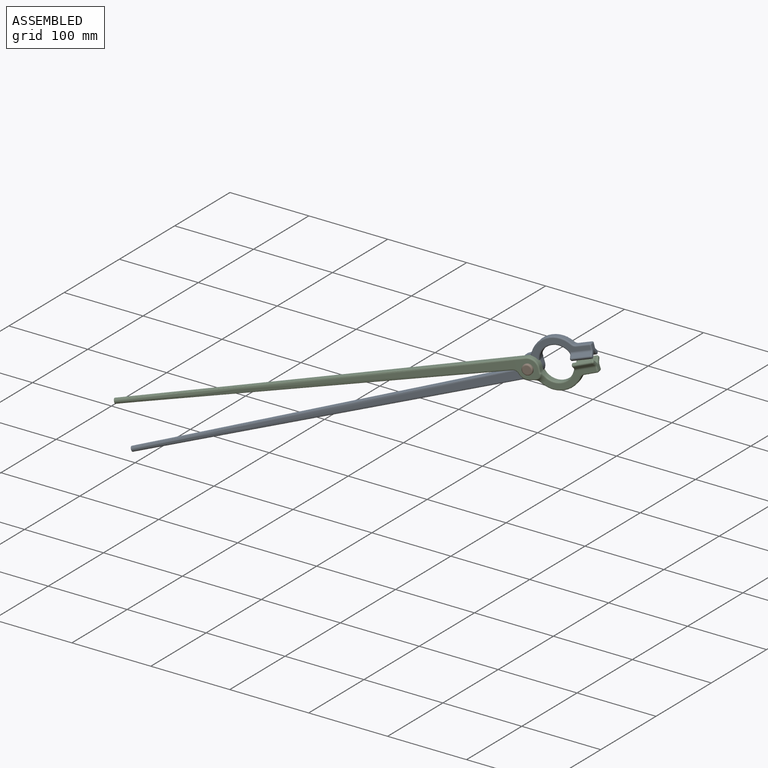
[diagram: assembled view]
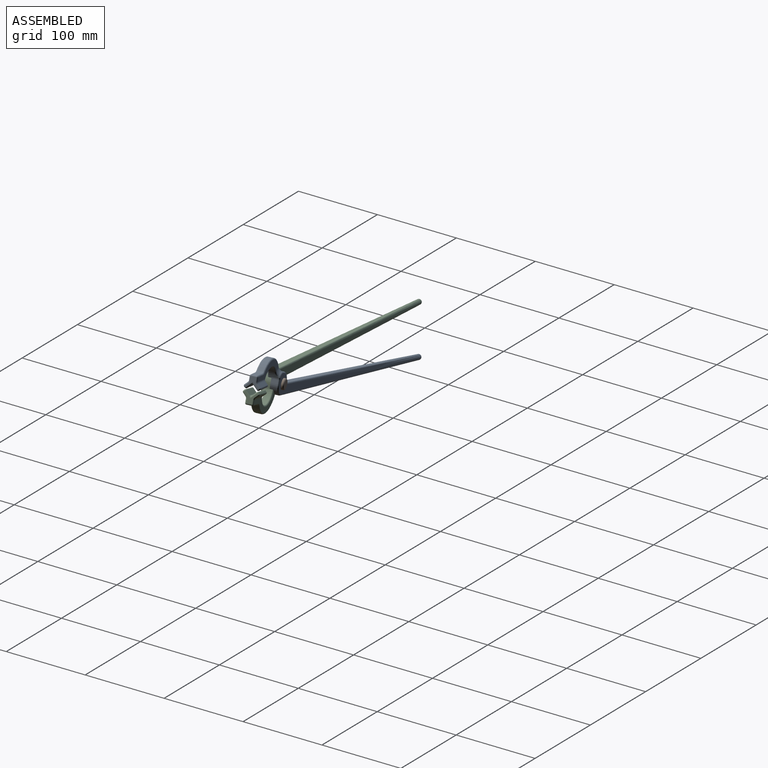
[diagram: assembled view, second angle]
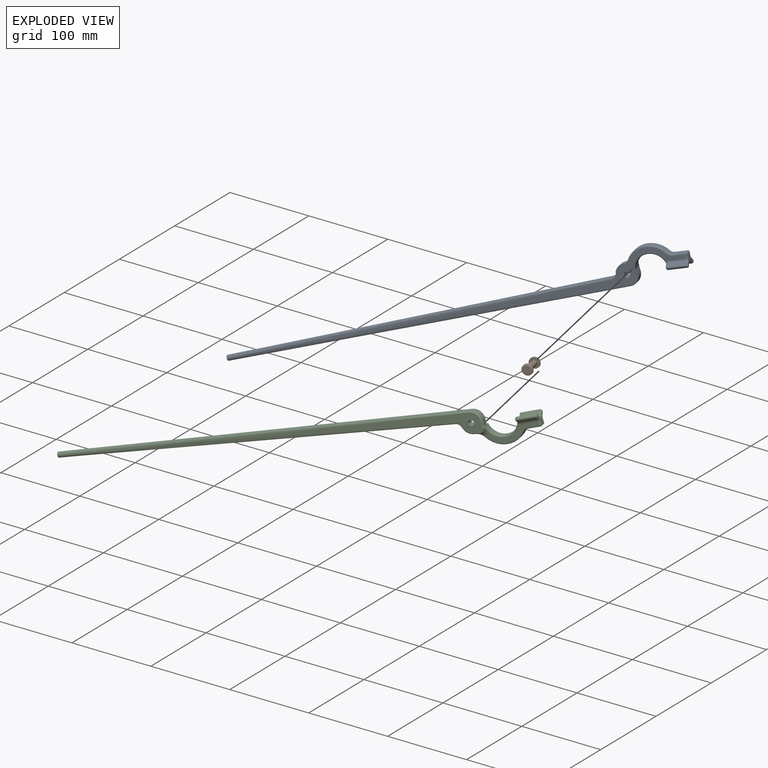
[diagram: exploded view]
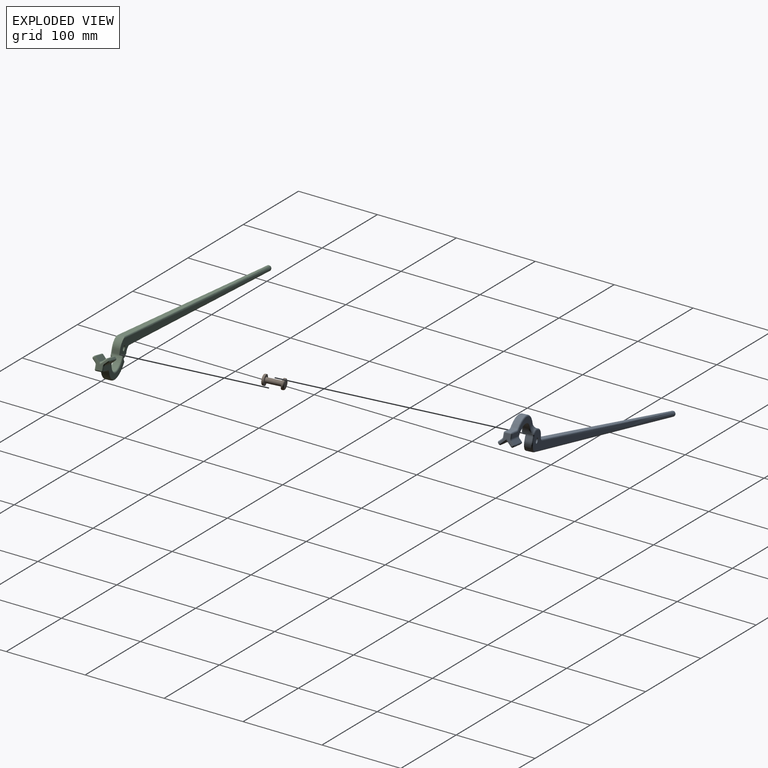
[diagram: exploded view, second angle]
ASSEMBLY  parts=3 mates=4
PART A: 108 faces, bbox 545.5x20.8x44.9 mm
  f0: plane 5.34x4.33mm, normal (-1,0,0.07), area 8.1mm2, adj f9,f70,f86,f88,f90
  f1: plane 26.97x25.98mm, normal (0,-1,0), area 494mm2, adj f2,f4,f6,f7,f8,f9,f24,f25
  f2: plane 7.94x1.7mm, normal (0,0,1), area 13.5mm2, adj f1,f25,f34,f51
  f3: plane 12.92x6.99mm, normal (0,0,-1), area 84.2mm2, adj f6,f30,f41,f43,f45
  f4: plane 7.94x4.37mm, normal (1,0,0), area 34.7mm2, adj f1,f6,f26,f46
  f5: plane 24.25x22.69mm, normal (0,1,0), area 429.3mm2, adj f24,f33,f44,f45,f46,f47,f48,f49
  f6: cylinder r=12.7mm len=12.7mm, axis (0,1,0), area 154.7mm2, adj f1,f3,f4,f41,f47
  f7: cylinder r=28.57mm len=48.84mm, axis (0,1,0), area 365.5mm2, adj f1,f8,f21,f25,f54,f55,f66
  f8: cylinder r=13.79mm len=7.32mm, axis (0,1,0), area 47.5mm2, adj f1,f7,f9,f10,f66,f69
  f9: cylinder r=19.05mm len=36.72mm, axis (0,1,0), area 325.1mm2, adj f0,f1,f8,f15,f26,f59,f61,f63
  f10: plane 66.95x20.27mm, normal (0,-1,0), area 441.9mm2, adj f8,f22,f66,f67,f68,f69,f82
  f11: plane 62.88x20.27mm, normal (0,1,0), area 392.9mm2, adj f23,f27,f52,f53,f54,f61,f77
  f12: plane 22.48x6.03mm, normal (-0.05,0.71,-0.71), area 141.1mm2, adj f74,f84,f90,f92,f100
  f13: plane 22.48x6.03mm, normal (-0.05,-0.71,-0.71), area 141.1mm2, adj f72,f84,f91,f93,f103
  f14: plane 14.93x6.35mm, normal (0.07,0,1), area 95mm2, adj f21,f52,f68,f81
  f15: plane 5.34x4.33mm, normal (-1,0,0.07), area 8.1mm2, adj f9,f59,f87,f89,f91
  f16: plane 22.4x4.83mm, normal (0.05,-0.71,0.71), area 103.3mm2, adj f22,f78,f86,f97
  f17: plane 22.25x2.67mm, normal (-0.05,-0.71,-0.71), area 35.3mm2, adj f76,f88,f97,f100
  f18: plane 22.25x2.67mm, normal (-0.05,0.71,-0.71), area 35.3mm2, adj f71,f89,f103,f106
  f19: plane 22.4x4.83mm, normal (0.05,0.71,0.71), area 103.3mm2, adj f23,f73,f87,f106
  f20: plane 15.72x12.4mm, normal (1,0,-0.07), area 65.7mm2, adj f71,f72,f73,f74,f75,f76,f77,f78
  f21: cylinder r=6.35mm len=6.35mm, axis (0,1,0), area 35.5mm2, adj f7,f14,f53,f67
  f22: cylinder r=3.17mm len=23.75mm, axis (1,0,-0.07), area 57mm2, adj f10,f16,f70,f80,f86
  f23: cylinder r=3.17mm len=23.75mm, axis (1,0,-0.07), area 57mm2, adj f11,f19,f59,f75,f87
  f24: cylinder r=3.17mm len=9.53mm, axis (0,-1,0), area 190mm2, adj f1,f5
  f25: cylinder r=6.35mm len=7.94mm, axis (0,1,0), area 42.1mm2, adj f1,f2,f7,f50,f56,f57
  f26: cylinder r=6.35mm len=7.94mm, axis (0,1,0), area 17.7mm2, adj f1,f4,f9,f44,f65
  f27: torus R=12.5mm, axis (0,-1,0), area 56.6mm2, adj f11,f28,f55,f56,f62,f63,f65
  f28: cylinder r=6.35mm len=1.98mm, axis (1,0,0), area 1.6mm2, adj f27,f57,f60
  f29: plane 6.35x6.35mm, normal (-1,0,0), area 31.7mm2, adj f30,f31,f32,f33
  f30: bspline ~457.2x9.53mm, area 2675mm2, adj f3,f29,f40,f42
  f31: bspline ~457.2x15.56mm, area 3425mm2, adj f1,f29,f36,f37,f40
  f32: bspline ~457.2x9.53mm, area 2635mm2, adj f29,f35,f36,f38
  f33: bspline ~457.2x15.56mm, area 3067.5mm2, adj f5,f29,f38,f39,f42,f48
  f34: cylinder r=12.7mm len=11.99mm, axis (0,1,0), area 121.7mm2, adj f1,f2,f35,f37,f49
  f35: bspline ~9.07x5.93mm, area 49.3mm2, adj f32,f34,f37,f39,f48
  f36: bspline ~474.91x5.91mm, area 475.9mm2, adj f31,f32,f37
  f37: bspline ~10.68x9.62mm, area 24.7mm2, adj f1,f31,f34,f35,f36
  f38: bspline ~474.91x5.91mm, area 475.9mm2, adj f32,f33,f39
  f39: bspline ~7.96x4.04mm, area 12.4mm2, adj f33,f35,f38,f48
  f40: bspline ~460.62x2.62mm, area 483.4mm2, adj f30,f31,f41
  f41: bspline ~44.11x1.81mm, area 35.2mm2, adj f1,f3,f6,f40
  f42: bspline ~460.62x2.62mm, area 483.4mm2, adj f30,f33,f43
  f43: bspline ~14.77x1.66mm, area 0mm2, adj f3,f42,f45
  f44: torus R=7.94mm, axis (0,-1,0), area 5.7mm2, adj f5,f26,f46,f64
  f45: cylinder r=1.59mm len=12.7mm, axis (-1,0,0), area 31.7mm2, adj f3,f5,f43,f47
  f46: cylinder r=1.59mm len=4.37mm, axis (0,0,1), area 10.9mm2, adj f4,f5,f44,f47
  f47: torus R=11.11mm, axis (0,-1,0), area 47.5mm2, adj f5,f6,f45,f46
  f48: bspline ~6.02x4.53mm, area 8.7mm2, adj f5,f33,f35,f39,f49
  f49: torus R=11.11mm, axis (0,-1,0), area 37.3mm2, adj f5,f34,f48,f51
  f50: torus R=7.94mm, axis (0,-1,0), area 5.9mm2, adj f5,f25,f51,f58
  f51: cylinder r=1.59mm len=1.7mm, axis (-1,0,0), area 4.2mm2, adj f2,f5,f49,f50
  f52: cylinder r=1.59mm len=15.04mm, axis (1,0,-0.07), area 37.3mm2, adj f11,f14,f53,f79
  f53: torus R=7.94mm, axis (0,-1,0), area 15.2mm2, adj f11,f21,f52,f54
  f54: torus R=26.99mm, axis (0,-1,0), area 125mm2, adj f7,f11,f53,f55
  f55: bspline ~5.48x5.22mm, area 9.4mm2, adj f7,f27,f54,f56
  f56: bspline ~4.01x3.85mm, area 5.6mm2, adj f25,f27,f55,f57
  f57: bspline ~3.33x3.11mm, area 2.8mm2, adj f25,f28,f56,f58
  f58: sphere r=1.59mm, area 0.7mm2, adj f50,f57,f60
  f59: bspline ~4.78x3.15mm, area 8mm2, adj f9,f15,f23,f61,f87
  f60: cylinder r=1.59mm len=1.98mm, axis (1,0,0), area 3.6mm2, adj f5,f28,f58,f62
  f61: torus R=20.64mm, axis (0,-1,0), area 96mm2, adj f9,f11,f59,f63
  f62: torus R=5.22mm, axis (0,1,0), area 16.2mm2, adj f5,f27,f60,f64
  f63: bspline ~8.93x5.53mm, area 17.1mm2, adj f9,f27,f61,f65
  f64: sphere r=1.59mm, area 0.9mm2, adj f44,f62,f65
  f65: bspline ~1.52x1.41mm, area 0.2mm2, adj f26,f27,f63,f64
  f66: torus R=26.99mm, axis (0,-1,0), area 143.8mm2, adj f7,f8,f10,f67
  f67: torus R=7.94mm, axis (0,-1,0), area 15.2mm2, adj f10,f21,f66,f68
  f68: cylinder r=1.59mm len=15.04mm, axis (-1,0,0.07), area 37.3mm2, adj f10,f14,f67,f83
  f69: torus R=20.64mm, axis (0,-1,0), area 117.4mm2, adj f8,f9,f10,f70
  f70: bspline ~4.78x3.15mm, area 8mm2, adj f0,f9,f22,f69,f86
  f71: cylinder r=1.59mm len=2.25mm, axis (-0.05,-0.71,-0.71), area 4mm2, adj f18,f20,f104,f107
  f72: cylinder r=1.59mm len=7.86mm, axis (0.05,-0.71,0.71), area 19.8mm2, adj f13,f20,f85,f104
  f73: cylinder r=1.59mm len=4.51mm, axis (-0.05,0.71,-0.71), area 11.6mm2, adj f19,f20,f75,f107
  f74: cylinder r=1.59mm len=7.86mm, axis (-0.05,-0.71,-0.71), area 19.8mm2, adj f12,f20,f85,f101
  f75: torus R=4.76mm, axis (1,0,-0.07), area 7.3mm2, adj f20,f23,f73,f77
  f76: cylinder r=1.59mm len=2.25mm, axis (0.05,-0.71,0.71), area 4mm2, adj f17,f20,f98,f101
  f77: cylinder r=1.59mm len=4.75mm, axis (0.07,0,1), area 11.6mm2, adj f11,f20,f75,f79
  f78: cylinder r=1.59mm len=4.51mm, axis (0.05,0.71,0.71), area 11.6mm2, adj f16,f20,f80,f98
  f79: sphere r=1.59mm, area 5.4mm2, adj f52,f77,f81
  f80: torus R=4.76mm, axis (1,0,-0.07), area 7.3mm2, adj f20,f22,f78,f82
  f81: cylinder r=1.59mm len=6.35mm, axis (0,1,0), area 15.8mm2, adj f14,f20,f79,f83
  f82: cylinder r=1.59mm len=4.75mm, axis (0.07,0,1), area 11.6mm2, adj f10,f20,f80,f83
  f83: sphere r=1.59mm, area 4mm2, adj f68,f81,f82
  f84: cylinder r=1.59mm len=22.82mm, axis (-1,0,0.07), area 56.2mm2, adj f12,f13,f85,f94,f95
  f85: bspline ~3.25x2.25mm, area 2.7mm2, adj f72,f74,f84
  f86: cylinder r=1.59mm len=4.41mm, axis (-0.05,-0.71,-0.71), area 11.3mm2, adj f0,f16,f22,f70,f96
  f87: cylinder r=1.59mm len=4.41mm, axis (0.05,-0.71,0.71), area 11.3mm2, adj f15,f19,f23,f59,f105
  f88: cylinder r=1.59mm len=2.35mm, axis (-0.05,0.71,-0.71), area 4mm2, adj f0,f17,f96,f99
  f89: cylinder r=1.59mm len=2.35mm, axis (0.05,0.71,0.71), area 4mm2, adj f15,f18,f102,f105
  f90: cylinder r=1.59mm len=5.37mm, axis (0.05,0.71,0.71), area 14.6mm2, adj f0,f12,f92,f99
  f91: cylinder r=1.59mm len=5.37mm, axis (-0.05,0.71,-0.71), area 14.6mm2, adj f13,f15,f93,f102
  f92: bspline ~1.65x1.63mm, area 0.8mm2, adj f9,f12,f90,f94
  f93: bspline ~2.2x1.89mm, area 0.8mm2, adj f9,f13,f91,f95
  f94: bspline ~3.28x1.52mm, area 2.6mm2, adj f9,f84,f92,f95
  f95: bspline ~2.3x1.52mm, area 2mm2, adj f9,f84,f93,f94
  f96: sphere r=1.59mm, area 3mm2, adj f86,f88,f97
  f97: cylinder r=1.59mm len=22.33mm, axis (-1,0,0.07), area 55.4mm2, adj f16,f17,f96,f98
  f98: sphere r=1.59mm, area 3.5mm2, adj f76,f78,f97
  f99: sphere r=1.59mm, area 2.8mm2, adj f88,f90,f100
  f100: cylinder r=1.59mm len=22.2mm, axis (-1,0,0.07), area 55.4mm2, adj f12,f17,f99,f101
  f101: sphere r=1.59mm, area 5.1mm2, adj f74,f76,f100
  f102: sphere r=1.59mm, area 2.8mm2, adj f89,f91,f103
  f103: cylinder r=1.59mm len=22.2mm, axis (-1,0,0.07), area 55.4mm2, adj f13,f18,f102,f104
  f104: sphere r=1.59mm, area 5.1mm2, adj f71,f72,f103
  f105: sphere r=1.59mm, area 3mm2, adj f87,f89,f106
  f106: cylinder r=1.59mm len=22.33mm, axis (-1,0,0.07), area 55.4mm2, adj f18,f19,f105,f107
  f107: sphere r=1.59mm, area 3.5mm2, adj f71,f73,f106
PART B: 9 faces, bbox 13.7x13.7x25.4 mm
  f0: plane 9.53x9.53mm, normal (0,0,1), area 71.3mm2, adj f7
  f1: cylinder r=6.35mm len=12.7mm, axis (0,0,-1), area 63.3mm2, adj f2,f7
  f2: plane 12.7x12.7mm, normal (0,0,-1), area 95mm2, adj f1,f3
  f3: cylinder r=3.17mm len=19.05mm, axis (0,0,-1), area 380mm2, adj f2,f4
  f4: plane 12.7x12.7mm, normal (0,0,1), area 95mm2, adj f3,f5
  f5: cylinder r=6.35mm len=12.7mm, axis (0,0,-1), area 63.3mm2, adj f4,f8
  f6: plane 9.53x9.53mm, normal (0,0,-1), area 71.3mm2, adj f8
  f7: torus R=4.76mm, axis (0,0,1), area 90.5mm2, adj f0,f1
  f8: torus R=4.76mm, axis (0,0,-1), area 90.5mm2, adj f5,f6
PART C: same geometry as A
PLACE A rot(axis=(-0.05,-0.8,0.6),24.8deg) t=(30.68,94.08,159)mm
PLACE B rot(axis=(-0.72,0.42,0.55),122.1deg) t=(43.39,75.54,176.65)mm
PLACE C rot(axis=(0.98,0.13,0.13),178.1deg) t=(27.46,75.37,185.53)mm
MATE planar C.f6 <-> B.f1  axis (0.25,-0.97,0.07) through (42.61,78.61,176.44)mm
MATE cylindrical C.f6 <-> B.f1  axis (-0.25,0.97,-0.07) through (41.43,83.22,176.12)mm
MATE planar A.f1 <-> C.f1  axis (0.25,-0.97,0.07) through (40.17,87.81,175.99)mm
MATE cylindrical B.f1 <-> A.f6  axis (0.25,-0.97,0.07) through (40.26,87.82,175.81)mm
